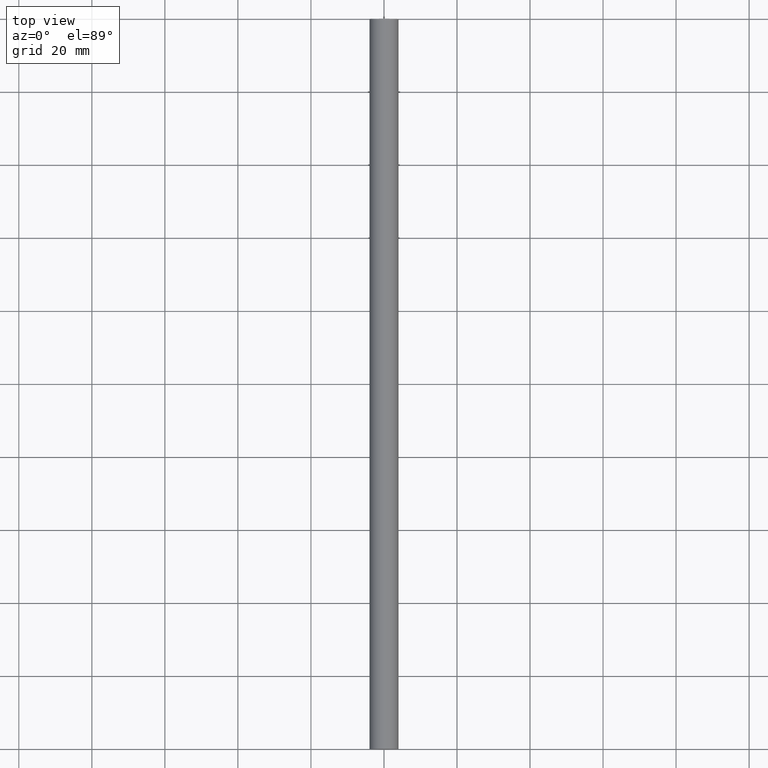
[diagram: clean part render]
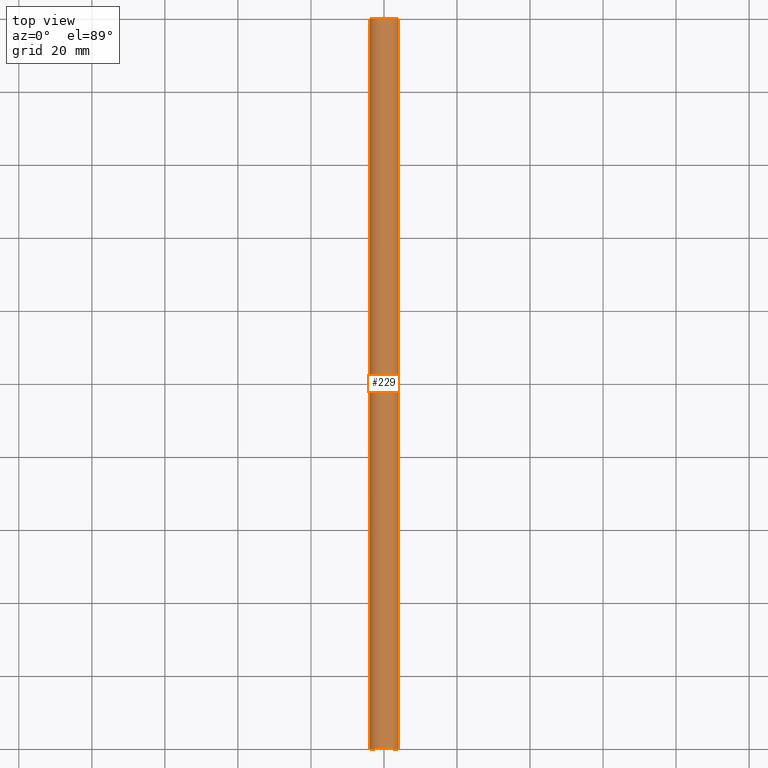
[diagram: same view with one face highlighted and labeled with its STEP entity id]
A machine part, top view. The second image highlights one B-rep face of the part: STEP entity #229.
In plain terms, the highlighted face is a freeform B-spline surface patch.
Its self-contained STEP definition (entity closure, byte-faithful):
#66=CARTESIAN_POINT('',(-3.972038105347375,-9.086170E-015,0.472136939529659));
#67=VERTEX_POINT('',#66);
#85=CARTESIAN_POINT('',(-3.972038105347375,200.0,0.472136939529659));
#86=VERTEX_POINT('',#85);
#87=CARTESIAN_POINT('',(-3.972038105347375,200.0,0.472136939529659));
#88=CARTESIAN_POINT('',(-3.972038105347375,-9.086170E-015,0.472136939529659));
#89=QUASI_UNIFORM_CURVE('',1,(#87,#88),.UNSPECIFIED.,.F.,.U.);
#90=EDGE_CURVE('',#86,#67,#89,.T.);
#109=CARTESIAN_POINT('',(3.992539193624401,200.0,-0.244194159170560));
#110=VERTEX_POINT('',#109);
#124=CARTESIAN_POINT('',(3.992539193624401,-9.325873E-015,-0.244194159170560));
#125=VERTEX_POINT('',#124);
#126=CARTESIAN_POINT('',(3.992539193624401,200.0,-0.244194159170560));
#127=CARTESIAN_POINT('',(3.992539193624401,-9.325873E-015,-0.244194159170560));
#128=QUASI_UNIFORM_CURVE('',1,(#126,#127),.UNSPECIFIED.,.F.,.U.);
#129=EDGE_CURVE('',#110,#125,#128,.T.);
#147=CARTESIAN_POINT('',(3.992539193687467,205.0,-0.244194158139428));
#148=CARTESIAN_POINT('',(4.236733351826894,205.000000000000090,3.748345035548039));
#149=CARTESIAN_POINT('',(0.244194158139428,205.0,3.992539193687467));
#150=CARTESIAN_POINT('',(-3.526173963358004,205.000000000000060,4.223144786930110));
#151=CARTESIAN_POINT('',(-3.972038105454666,205.000000000000030,0.472136938627034));
#152=CARTESIAN_POINT('',(3.992539193687467,-5.125000000000000,-0.244194158139428));
#153=CARTESIAN_POINT('',(4.236733351826894,-5.125000000000001,3.748345035548039));
#154=CARTESIAN_POINT('',(0.244194158139428,-5.125000000000000,3.992539193687467));
#155=CARTESIAN_POINT('',(-3.526173963358004,-5.124999999999999,4.223144786930110));
#156=CARTESIAN_POINT('',(-3.972038105454666,-5.125000000000001,0.472136938627034));
#164=(BOUNDED_SURFACE()B_SPLINE_SURFACE(2,1,((#147,#152),(#148,#153),(#149,#154),(#150,#155),(#151,#156)),.UNSPECIFIED.,.F.,.F.,.U.)B_SPLINE_SURFACE_WITH_KNOTS((3,2,3),(2,2),(0.0,6.627416997969518,12.989737316020260),(0.0,210.125000000000110),.UNSPECIFIED.)GEOMETRIC_REPRESENTATION_ITEM()RATIONAL_B_SPLINE_SURFACE(((1.0,1.0),(0.707106781186548,0.707106781186548),(1.0,1.0),(0.718822509939086,0.718822509939086),(0.977505800795127,0.977505800795127)))REPRESENTATION_ITEM('')SURFACE());
#165=CARTESIAN_POINT('',(0.0,0.0,4.0));
#166=VERTEX_POINT('',#165);
#167=CARTESIAN_POINT('',(0.0,0.0,4.0));
#168=CARTESIAN_POINT('',(-3.552698102179440,0.0,4.000000000000000));
#169=CARTESIAN_POINT('',(-3.972038105347374,-9.086170E-015,0.472136939529658));
#177=(BOUNDED_CURVE()B_SPLINE_CURVE(2,(#167,#168,#169),.UNSPECIFIED.,.F.,.U.)B_SPLINE_CURVE_WITH_KNOTS((3,3),(0.0,0.229562473438834),.UNSPECIFIED.)CURVE()GEOMETRIC_REPRESENTATION_ITEM()RATIONAL_B_SPLINE_CURVE((1.0,0.731050832942889,0.956026754037335))REPRESENTATION_ITEM(''));
#178=EDGE_CURVE('',#166,#67,#177,.T.);
#179=ORIENTED_EDGE('',*,*,#178,.F.);
#180=CARTESIAN_POINT('',(3.992539193624401,-9.325873E-015,-0.244194159170560));
#181=CARTESIAN_POINT('',(4.000000000000000,0.0,-0.122211054228378));
#182=CARTESIAN_POINT('',(4.0,0.0,0.0));
#183=CARTESIAN_POINT('',(4.000000000000000,0.0,4.000000000000000));
#184=CARTESIAN_POINT('',(0.0,0.0,4.0));
#192=(BOUNDED_CURVE()B_SPLINE_CURVE(2,(#180,#181,#182,#183,#184),.UNSPECIFIED.,.F.,.U.)B_SPLINE_CURVE_WITH_KNOTS((3,2,3),(0.739332962152843,0.750000000000000,1.0),.UNSPECIFIED.)CURVE()GEOMETRIC_REPRESENTATION_ITEM()RATIONAL_B_SPLINE_CURVE((0.976072041482189,0.987502787798965,1.0,0.707106781186548,1.0))REPRESENTATION_ITEM(''));
#193=EDGE_CURVE('',#125,#166,#192,.T.);
#194=ORIENTED_EDGE('',*,*,#193,.F.);
#195=ORIENTED_EDGE('',*,*,#129,.F.);
#196=CARTESIAN_POINT('',(0.0,200.0,4.0));
#197=VERTEX_POINT('',#196);
#198=CARTESIAN_POINT('',(3.992539193624401,200.000000000000030,-0.244194159170560));
#199=CARTESIAN_POINT('',(4.000000000000000,200.000000000000060,-0.122211054228378));
#200=CARTESIAN_POINT('',(4.0,200.0,0.0));
#201=CARTESIAN_POINT('',(4.000000000000000,200.0,4.000000000000000));
#202=CARTESIAN_POINT('',(0.0,200.0,4.0));
#210=(BOUNDED_CURVE()B_SPLINE_CURVE(2,(#198,#199,#200,#201,#202),.UNSPECIFIED.,.F.,.U.)B_SPLINE_CURVE_WITH_KNOTS((3,2,3),(0.739332962152843,0.750000000000000,1.0),.UNSPECIFIED.)CURVE()GEOMETRIC_REPRESENTATION_ITEM()RATIONAL_B_SPLINE_CURVE((0.976072041482189,0.987502787798965,1.0,0.707106781186548,1.0))REPRESENTATION_ITEM(''));
#211=EDGE_CURVE('',#110,#197,#210,.T.);
#212=ORIENTED_EDGE('',*,*,#211,.T.);
#213=CARTESIAN_POINT('',(0.0,200.0,4.0));
#214=CARTESIAN_POINT('',(-3.552698102179440,200.000000000000060,4.000000000000000));
#215=CARTESIAN_POINT('',(-3.972038105347374,200.0,0.472136939529659));
#223=(BOUNDED_CURVE()B_SPLINE_CURVE(2,(#213,#214,#215),.UNSPECIFIED.,.F.,.U.)B_SPLINE_CURVE_WITH_KNOTS((3,3),(0.0,0.229562473438834),.UNSPECIFIED.)CURVE()GEOMETRIC_REPRESENTATION_ITEM()RATIONAL_B_SPLINE_CURVE((1.0,0.731050832942889,0.956026754037335))REPRESENTATION_ITEM(''));
#224=EDGE_CURVE('',#197,#86,#223,.T.);
#225=ORIENTED_EDGE('',*,*,#224,.T.);
#226=ORIENTED_EDGE('',*,*,#90,.T.);
#227=EDGE_LOOP('',(#179,#194,#195,#212,#225,#226));
#228=FACE_OUTER_BOUND('',#227,.T.);
#229=ADVANCED_FACE('',(#228),#164,.T.);